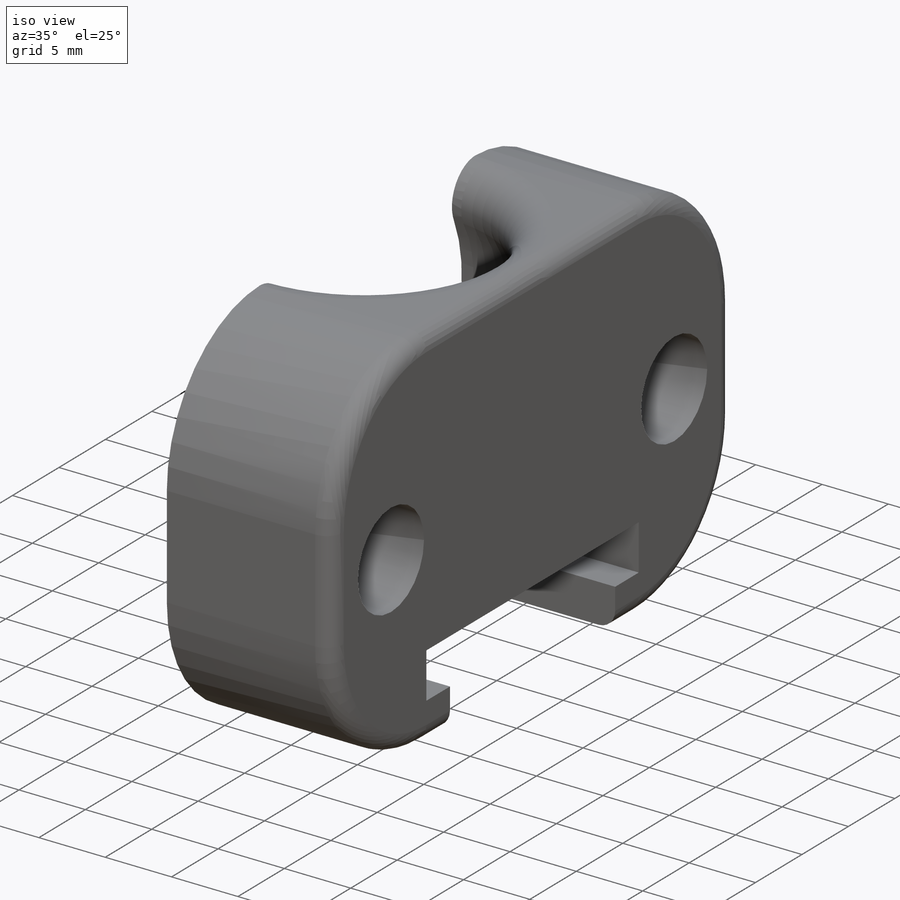
[diagram: iso view]
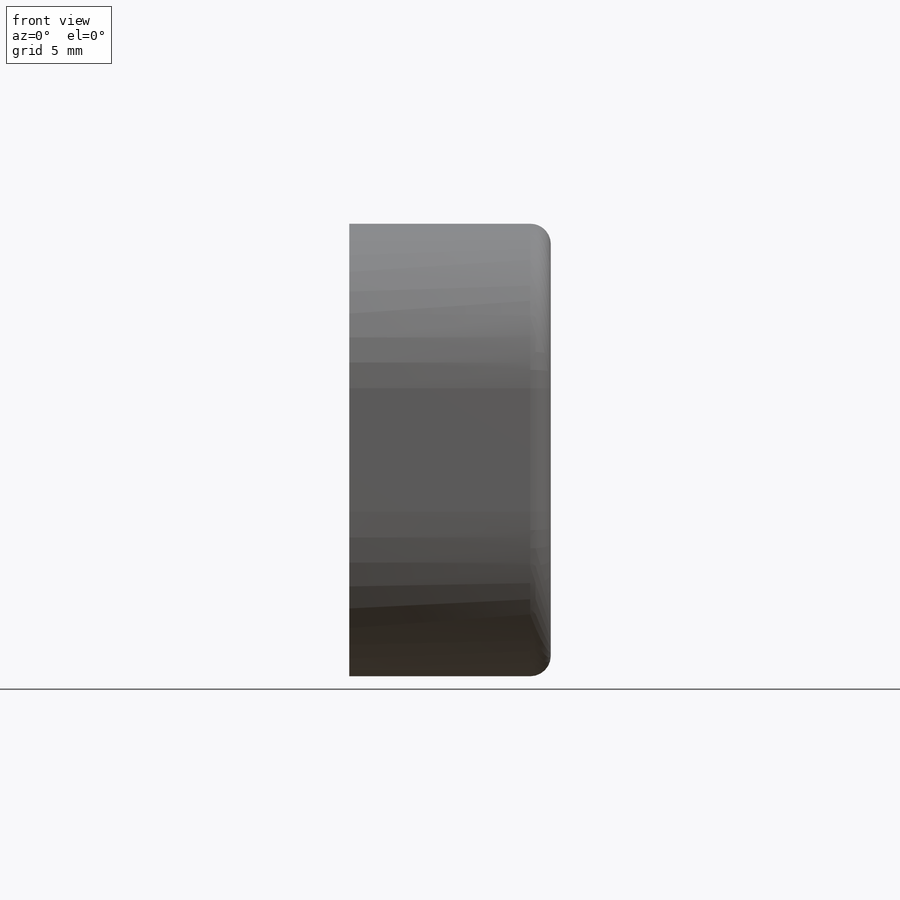
[diagram: front view]
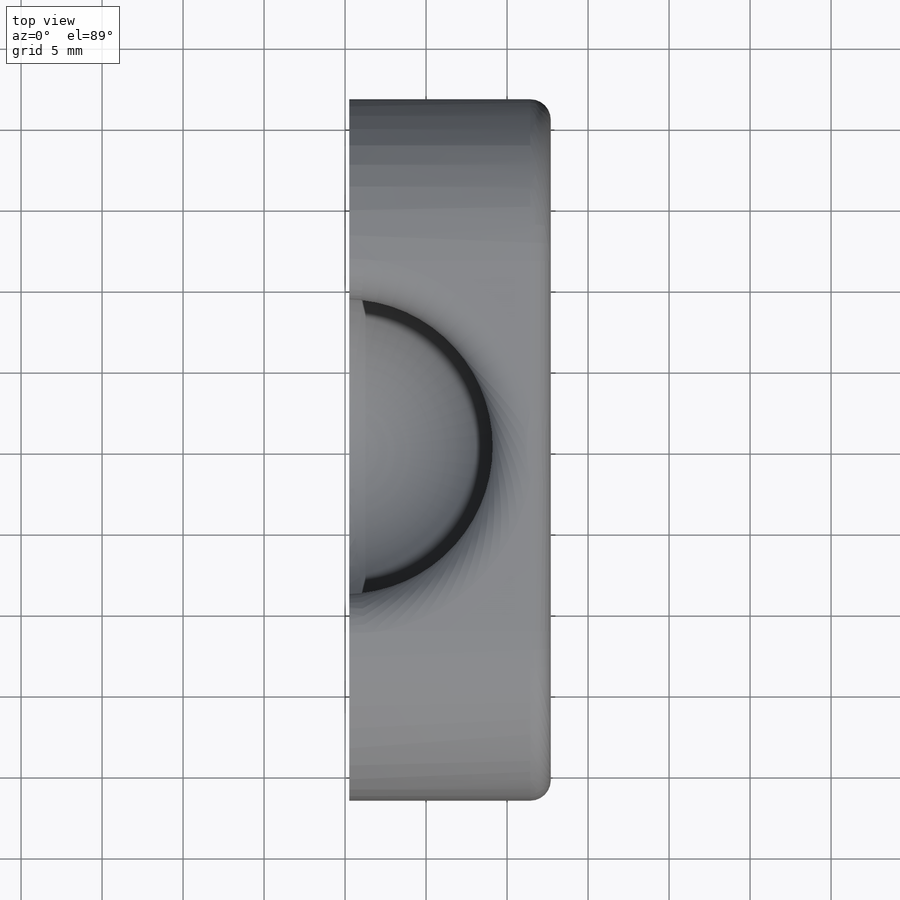
[diagram: top view]
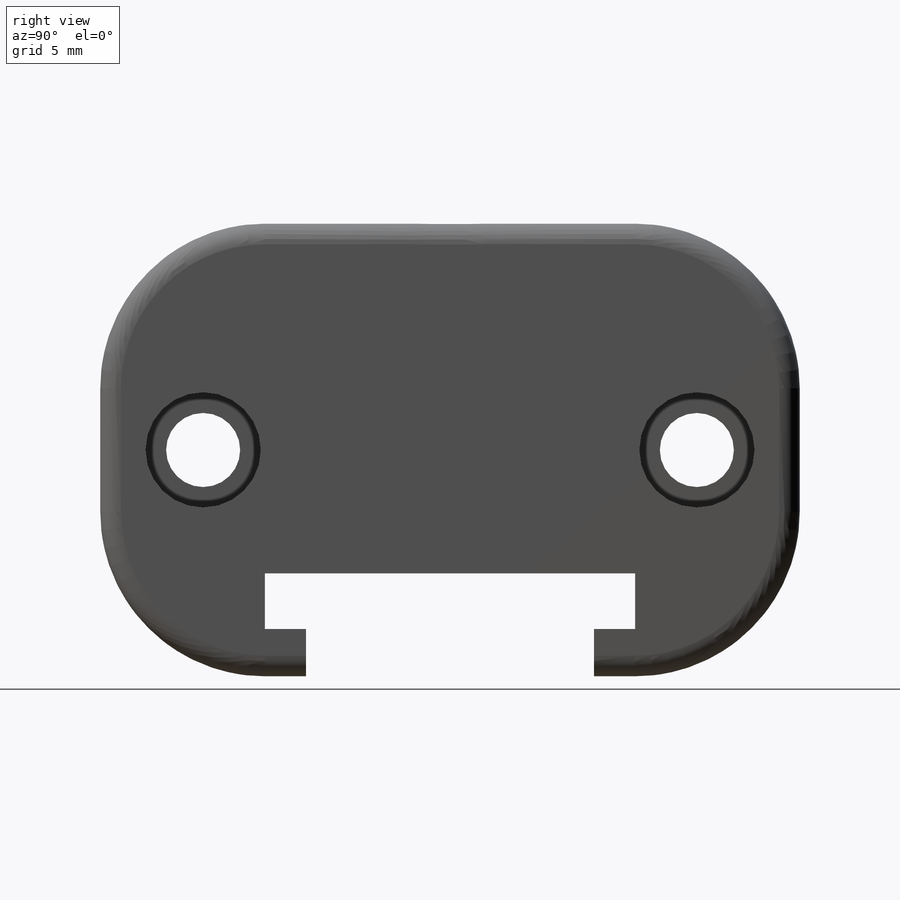
[diagram: right view]
SOLIDWORKS PART (.sldprt)
format: sldprt  version: not decoded by parser v0  size: 739,328 bytes
history: native  units: mm
features: sketch x8, extrude x4, fillet x3, cut_extrude x3, boolean_combine x2, material x1, revolve x1, plane x1 (+18 scaffold rows collapsed; 2 parser-record rows omitted)
feature tree (43):
  scaffold x18  (default folders/planes/origin — collapsed)
  material  "Material <not specified>"
  sketch  "Sketch1"  dims[D1=7.62mm D2=20.32mm D3=21.59mm D4=21.59mm]
  extrude  "main base extrusion"  Depth=12.7mm
  parser-record x2  (decoder bookkeeping rows leaked as tree rows — omitted from the tree; the rows remain in map.json)
  sketch  "Sketch2"  dims[D1=10.16mm]
  revolve  "Revolve1"  Angle=360deg
  boolean_combine  "Combine1"
  fillet  "neck exit fillet"  Radius=2.54mm
  sketch  "Sketch3"  dims[D1=4.572mm D2=4.572mm D3=6.35mm D4=6.35mm]
  cut_extrude  "screw throughholes"  [1 undecoded]
  sketch  "Sketch5"  dims[D1=7.112mm D2=7.112mm]
  cut_extrude  "countersink"  Depth=6.35mm
  fillet  "Fillet1"  Radius=10.16mm
  sketch  "Sketch4"  dims[D1=6.35mm]
  cut_extrude  "connect to part A"  [1 undecoded]
  sketch  "Sketch7"  dims[D1=2.921mm]
  extrude  "Boss-Extrude1"  Depth=2.54mm
  sketch  "Sketch8"  dims[D1=2.921mm]
  extrude  "Boss-Extrude2"  Depth=2.54mm
  fillet  "Fillet2"  Radius=1.27mm
  plane  "Shave off "  Offset=0.254mm
  sketch  "Sketch9"  dims[D1=22.86mm D2=22.86mm D3=10.16mm D4=22.86mm]
  extrude  "Boss-Extrude3"  Depth=12.7mm
  boolean_combine  "Combine2"
decode coverage: 17 of 21 modeling features carry decoded parameters
note: 2 parameter values undecoded
note: suppression state not decoded; provenance and decode notes live in map.json
